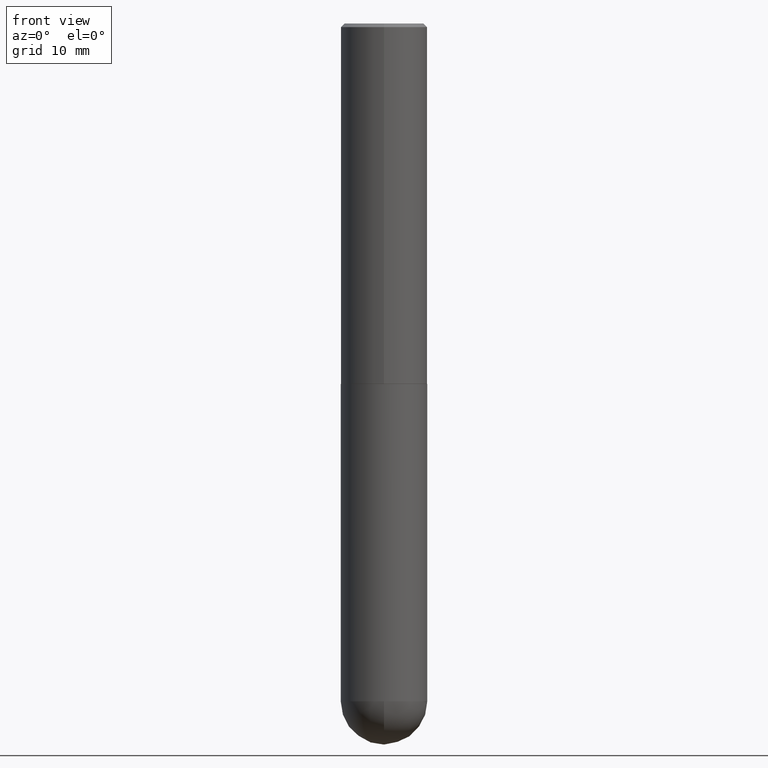
[diagram: clean part render]
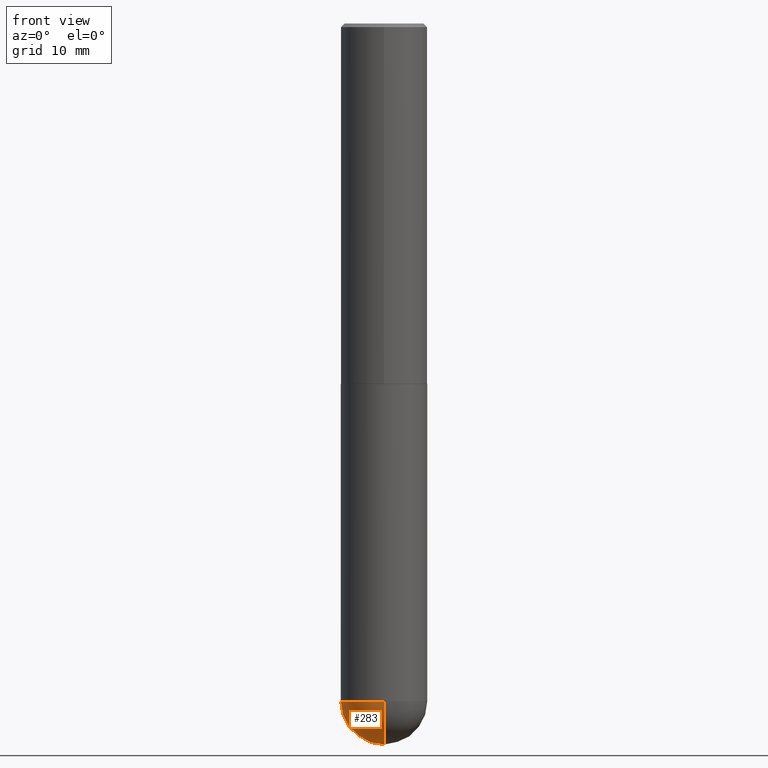
[diagram: same view with one face highlighted and labeled with its STEP entity id]
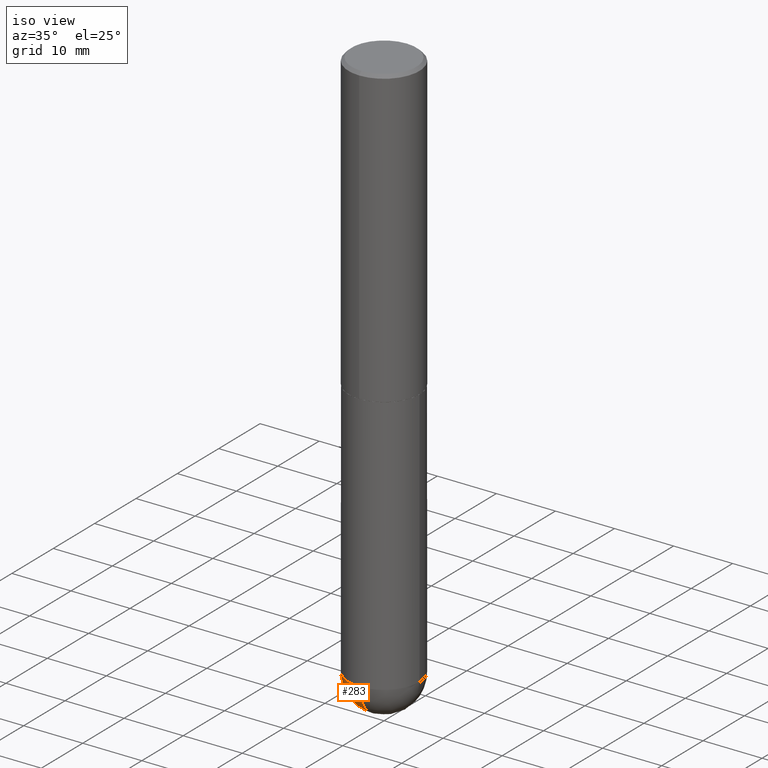
[diagram: same view with one face highlighted and labeled with its STEP entity id]
A machine part, front view. The second image highlights one B-rep face of the part: STEP entity #283.
A second angle (iso view) of the same face is appended — the face is thin or edge-on in the first view.
In plain terms, the highlighted spherical surface has radius 5.9995 mm.
Its self-contained STEP definition (entity closure, byte-faithful):
#3 = FACE_OUTER_BOUND ( 'NONE', #388, .T. ) ;
#13 = DIRECTION ( 'NONE',  ( 1.000000000000000000, -6.982962677686265133E-15, 0.000000000000000000 ) ) ;
#15 = CARTESIAN_POINT ( 'NONE',  ( 9.050190957929953666E-29, -1.292127413879071357E-14, -3.700800000000000090 ) ) ;
#74 = CARTESIAN_POINT ( 'NONE',  ( 8.719071180016067419E-29, -1.339545650693076387E-14, -3.700800000000000090 ) ) ;
#80 = CIRCLE ( 'NONE', #310, 0.2362000000000002709 ) ;
#85 = ORIENTED_EDGE ( 'NONE', *, *, #365, .F. ) ;
#86 = DIRECTION ( 'NONE',  ( 6.982962677686265922E-15, 1.000000000000000000, -4.626330217890364603E-15 ) ) ;
#89 = CARTESIAN_POINT ( 'NONE',  ( 1.649375784469585666E-15, 0.2361999999999869759, -3.700800000000000978 ) ) ;
#92 = AXIS2_PLACEMENT_3D ( 'NONE', #385, #188, #321 ) ;
#99 = CIRCLE ( 'NONE', #121, 0.2361999999999999933 ) ;
#121 = AXIS2_PLACEMENT_3D ( 'NONE', #266, #289, #13 ) ;
#129 = ORIENTED_EDGE ( 'NONE', *, *, #351, .F. ) ;
#131 = AXIS2_PLACEMENT_3D ( 'NONE', #182, #260, #86 ) ;
#134 = SPHERICAL_SURFACE ( 'NONE', #131, 0.2362000000000002709 ) ;
#166 = DIRECTION ( 'NONE',  ( -1.000000000000000000, 7.105427357601001070E-15, -4.926315508542082329E-29 ) ) ;
#169 = ORIENTED_EDGE ( 'NONE', *, *, #205, .T. ) ;
#182 = CARTESIAN_POINT ( 'NONE',  ( 8.719071180016067419E-29, -1.339545650693076387E-14, -3.700800000000000090 ) ) ;
#188 = DIRECTION ( 'NONE',  ( 1.000000000000000000, -6.982962677686265922E-15, 4.883557194083112340E-29 ) ) ;
#190 = ORIENTED_EDGE ( 'NONE', *, *, #278, .F. ) ;
#195 = VERTEX_POINT ( 'NONE', #228 ) ;
#205 = EDGE_CURVE ( 'NONE', #330, #270, #80, .T. ) ;
#223 = CARTESIAN_POINT ( 'NONE',  ( -1.678301941865268633E-15, -0.2362000000000132882, -3.700799999999998757 ) ) ;
#228 = CARTESIAN_POINT ( 'NONE',  ( -0.2361999999999999933, -8.218825635286368613E-15, -3.700800000000000090 ) ) ;
#260 = DIRECTION ( 'NONE',  ( -1.000000000000000000, 6.982962677686265922E-15, -4.883557194083112901E-29 ) ) ;
#264 = DIRECTION ( 'NONE',  ( -7.105427357601001070E-15, -1.000000000000000000, 0.000000000000000000 ) ) ;
#266 = CARTESIAN_POINT ( 'NONE',  ( 9.050190957929953666E-29, -1.292127413879071357E-14, -3.700800000000000090 ) ) ;
#270 = VERTEX_POINT ( 'NONE', #223 ) ;
#278 = EDGE_CURVE ( 'NONE', #330, #284, #344, .T. ) ;
#283 = ADVANCED_FACE ( 'NONE', ( #3 ), #134, .T. ) ;
#284 = VERTEX_POINT ( 'NONE', #89 ) ;
#289 = DIRECTION ( 'NONE',  ( -2.445468806185136597E-29, 3.491481338843145583E-15, 1.000000000000000000 ) ) ;
#310 = AXIS2_PLACEMENT_3D ( 'NONE', #74, #166, #264 ) ;
#321 = DIRECTION ( 'NONE',  ( 6.982962677686265922E-15, 1.000000000000000000, 0.000000000000000000 ) ) ;
#327 = DIRECTION ( 'NONE',  ( 1.000000000000000000, -6.982962677686265133E-15, 0.000000000000000000 ) ) ;
#330 = VERTEX_POINT ( 'NONE', #387 ) ;
#331 = AXIS2_PLACEMENT_3D ( 'NONE', #15, #393, #327 ) ;
#344 = CIRCLE ( 'NONE', #92, 0.2362000000000002709 ) ;
#350 = CIRCLE ( 'NONE', #331, 0.2361999999999999933 ) ;
#351 = EDGE_CURVE ( 'NONE', #195, #270, #99, .T. ) ;
#365 = EDGE_CURVE ( 'NONE', #284, #195, #350, .T. ) ;
#385 = CARTESIAN_POINT ( 'NONE',  ( 8.719071180016067419E-29, -1.339545650693076387E-14, -3.700800000000000090 ) ) ;
#387 = CARTESIAN_POINT ( 'NONE',  ( 9.306790425912204830E-29, -1.420568132046758614E-14, -3.937000000000000277 ) ) ;
#388 = EDGE_LOOP ( 'NONE', ( #190, #169, #129, #85 ) ) ;
#393 = DIRECTION ( 'NONE',  ( -2.445468806185136597E-29, 3.491481338843145583E-15, 1.000000000000000000 ) ) ;